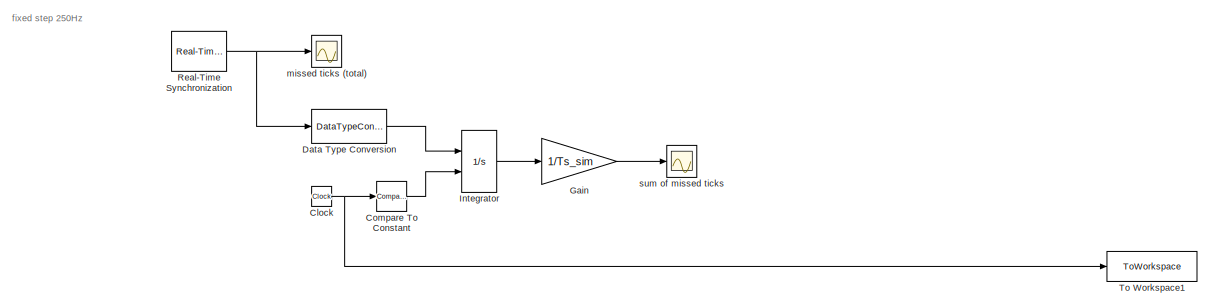
[diagram: root canvas - part 1/4, full width, top band]
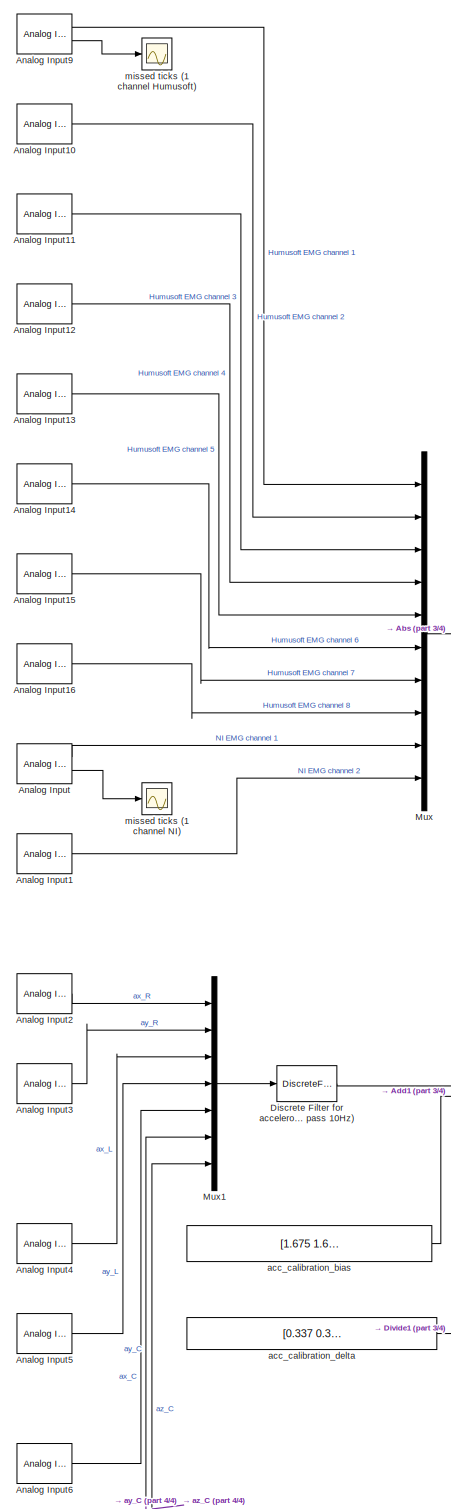
[diagram: root canvas - part 2/4, left side, full height]
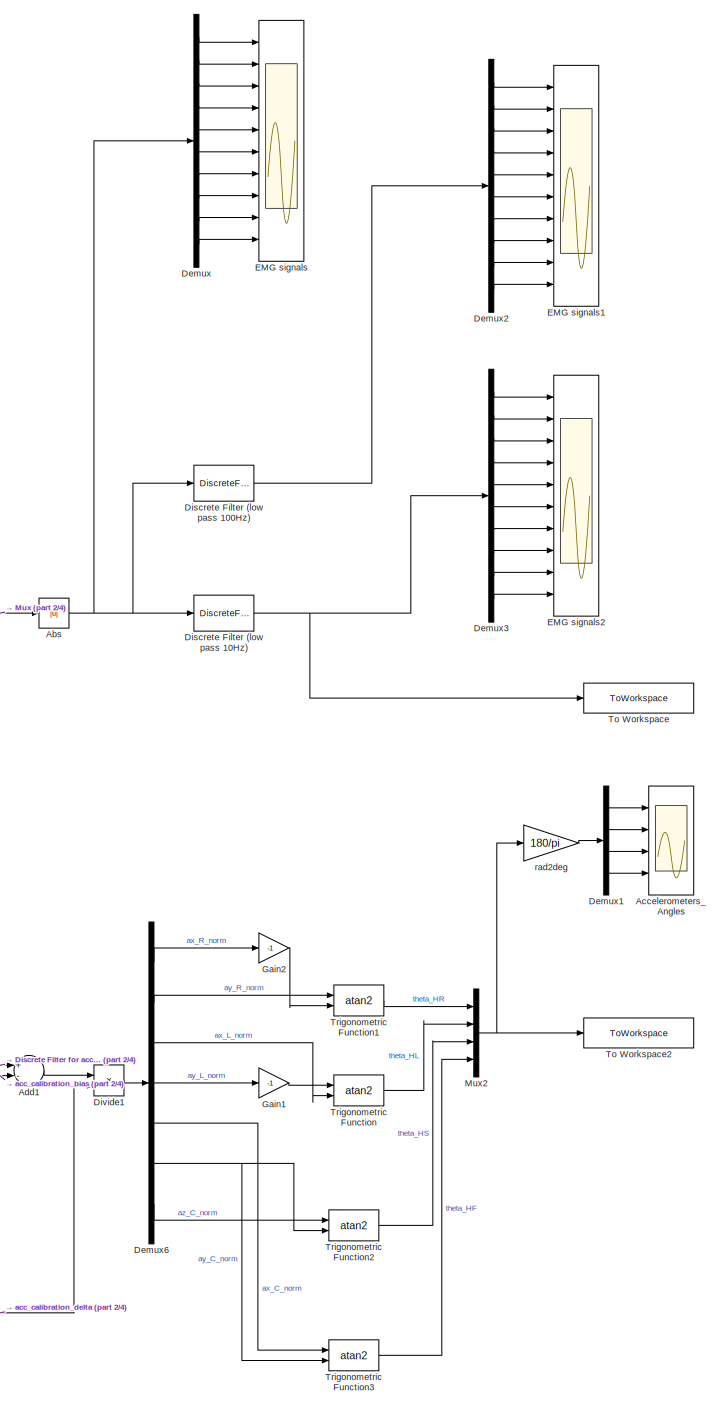
[diagram: root canvas - part 3/4, middle right region]
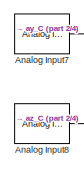
[diagram: root canvas - part 4/4, bottom left region]
MODEL slx_f25fc57dd0ad
KIND model
CONFIG AbsTol = auto
CONFIG FixedStep = Ts_sim
CONFIG MaxStep = auto
CONFIG MinStep = auto
CONFIG RelTol = 1e-3
CONFIG SampleTimeConstraint = Unconstrained
CONFIG Solver = ode5
CONFIG SolverMode = Auto
CONFIG SolverName = ode5
CONFIG StartTime = 0.0
CONFIG StopTime = 20
BLOCK [Abs] Abs
  SaturateOnIntegerOverflow = off
BLOCK [Scope] Accelerometers_Angles
  Floating = off
  LimitDataPoints = off
  NumInputPorts = 4
  Ports = [4]
  SaveName = ScopeData7
  YMax = 200~100~200~200
  YMin = -200~-70~-200~-200
BLOCK [Sum] Add1
  InputSameDT = off
  Inputs = +-
  OutDataTypeStr = Inherit: Inherit via internal rule
  Ports = [2, 1]
  SaturateOnIntegerOverflow = off
BLOCK [Reference] Analog Input  REF=sldrtlib/Analog Input
  AttributesFormatString = National Instruments\nPCI-6036E [auto]
  Channels = 1
  DataType = 1
  DrvAddress = 4294967295
  DrvName = National_Instruments/PCI-6036E
  DrvOptions = [0 0 0 0 0 0]
  MaxMissedTicks = 1000
  Ports = [0, 2]
  RangeMode = 1
  SampleTime = Ts_sim
  ShowMissedTicks = on
  SourceBlock = sldrtlib/Analog Input
  SourceType = Simulink Desktop Real-Time Analog Input
  VoltRange = 1
  YieldWhenWaiting = off
BLOCK [Reference] Analog Input1  REF=sldrtlib/Analog Input
  AttributesFormatString = National Instruments\nPCI-6036E [auto]
  Channels = 2
  DataType = 1
  DrvAddress = 4294967295
  DrvName = National_Instruments/PCI-6036E
  DrvOptions = [0 0 0 0 0 0]
  MaxMissedTicks = 1000
  Ports = [0, 1]
  RangeMode = 1
  SampleTime = Ts_sim
  ShowMissedTicks = off
  SourceBlock = sldrtlib/Analog Input
  SourceType = Simulink Desktop Real-Time Analog Input
  VoltRange = 1
  YieldWhenWaiting = off
BLOCK [Reference] Analog Input10  REF=sldrtlib/Analog Input
  AttributesFormatString = Humusoft\nAD622 [auto]
  Channels = 2
  DataType = 1
  DrvAddress = 4294967295
  DrvName = Humusoft/AD622
  DrvOptions = zeros(1,0)
  MaxMissedTicks = 1000
  Ports = [0, 1]
  RangeMode = 1
  SampleTime = Ts_sim
  ShowMissedTicks = off
  SourceBlock = sldrtlib/Analog Input
  SourceType = Simulink Desktop Real-Time Analog Input
  VoltRange = 1
  YieldWhenWaiting = off
BLOCK [Reference] Analog Input11  REF=sldrtlib/Analog Input
  AttributesFormatString = Humusoft\nAD622 [auto]
  Channels = 3
  DataType = 1
  DrvAddress = 4294967295
  DrvName = Humusoft/AD622
  DrvOptions = zeros(1,0)
  MaxMissedTicks = 1000
  Ports = [0, 1]
  RangeMode = 1
  SampleTime = Ts_sim
  ShowMissedTicks = off
  SourceBlock = sldrtlib/Analog Input
  SourceType = Simulink Desktop Real-Time Analog Input
  VoltRange = 1
  YieldWhenWaiting = off
BLOCK [Reference] Analog Input12  REF=sldrtlib/Analog Input
  AttributesFormatString = Humusoft\nAD622 [auto]
  Channels = 4
  DataType = 1
  DrvAddress = 4294967295
  DrvName = Humusoft/AD622
  DrvOptions = zeros(1,0)
  MaxMissedTicks = 1000
  Ports = [0, 1]
  RangeMode = 1
  SampleTime = Ts_sim
  ShowMissedTicks = off
  SourceBlock = sldrtlib/Analog Input
  SourceType = Simulink Desktop Real-Time Analog Input
  VoltRange = 1
  YieldWhenWaiting = off
BLOCK [Reference] Analog Input13  REF=sldrtlib/Analog Input
  AttributesFormatString = Humusoft\nAD622 [auto]
  Channels = 5
  DataType = 1
  DrvAddress = 4294967295
  DrvName = Humusoft/AD622
  DrvOptions = zeros(1,0)
  MaxMissedTicks = 1000
  Ports = [0, 1]
  RangeMode = 1
  SampleTime = Ts_sim
  ShowMissedTicks = off
  SourceBlock = sldrtlib/Analog Input
  SourceType = Simulink Desktop Real-Time Analog Input
  VoltRange = 1
  YieldWhenWaiting = off
BLOCK [Reference] Analog Input14  REF=sldrtlib/Analog Input
  AttributesFormatString = Humusoft\nAD622 [auto]
  Channels = 6
  DataType = 1
  DrvAddress = 4294967295
  DrvName = Humusoft/AD622
  DrvOptions = zeros(1,0)
  MaxMissedTicks = 1000
  Ports = [0, 1]
  RangeMode = 1
  SampleTime = Ts_sim
  ShowMissedTicks = off
  SourceBlock = sldrtlib/Analog Input
  SourceType = Simulink Desktop Real-Time Analog Input
  VoltRange = 1
  YieldWhenWaiting = off
BLOCK [Reference] Analog Input15  REF=sldrtlib/Analog Input
  AttributesFormatString = Humusoft\nAD622 [auto]
  Channels = 7
  DataType = 1
  DrvAddress = 4294967295
  DrvName = Humusoft/AD622
  DrvOptions = zeros(1,0)
  MaxMissedTicks = 1000
  Ports = [0, 1]
  RangeMode = 1
  SampleTime = Ts_sim
  ShowMissedTicks = off
  SourceBlock = sldrtlib/Analog Input
  SourceType = Simulink Desktop Real-Time Analog Input
  VoltRange = 1
  YieldWhenWaiting = off
BLOCK [Reference] Analog Input16  REF=sldrtlib/Analog Input
  AttributesFormatString = Humusoft\nAD622 [auto]
  Channels = 8
  DataType = 1
  DrvAddress = 4294967295
  DrvName = Humusoft/AD622
  DrvOptions = zeros(1,0)
  MaxMissedTicks = 1000
  Ports = [0, 1]
  RangeMode = 1
  SampleTime = Ts_sim
  ShowMissedTicks = off
  SourceBlock = sldrtlib/Analog Input
  SourceType = Simulink Desktop Real-Time Analog Input
  VoltRange = 1
  YieldWhenWaiting = off
BLOCK [Reference] Analog Input2  REF=sldrtlib/Analog Input
  AttributesFormatString = National Instruments\nPCI-6036E [auto]
  Channels = 3
  DataType = 1
  DrvAddress = 4294967295
  DrvName = National_Instruments/PCI-6036E
  DrvOptions = [0 0 0 0 0 0]
  MaxMissedTicks = 1000
  Ports = [0, 1]
  RangeMode = 1
  SampleTime = Ts_acc
  ShowMissedTicks = off
  SourceBlock = sldrtlib/Analog Input
  SourceType = Simulink Desktop Real-Time Analog Input
  VoltRange = 1
  YieldWhenWaiting = off
BLOCK [Reference] Analog Input3  REF=sldrtlib/Analog Input
  AttributesFormatString = National Instruments\nPCI-6036E [auto]
  Channels = 4
  DataType = 1
  DrvAddress = 4294967295
  DrvName = National_Instruments/PCI-6036E
  DrvOptions = [0 0 0 0 0 0]
  MaxMissedTicks = 1000
  Ports = [0, 1]
  RangeMode = 1
  SampleTime = Ts_acc
  ShowMissedTicks = off
  SourceBlock = sldrtlib/Analog Input
  SourceType = Simulink Desktop Real-Time Analog Input
  VoltRange = 1
  YieldWhenWaiting = off
BLOCK [Reference] Analog Input4  REF=sldrtlib/Analog Input
  AttributesFormatString = National Instruments\nPCI-6036E [auto]
  Channels = 5
  DataType = 1
  DrvAddress = 4294967295
  DrvName = National_Instruments/PCI-6036E
  DrvOptions = [0 0 0 0 0 0]
  MaxMissedTicks = 1000
  Ports = [0, 1]
  RangeMode = 1
  SampleTime = Ts_acc
  ShowMissedTicks = off
  SourceBlock = sldrtlib/Analog Input
  SourceType = Simulink Desktop Real-Time Analog Input
  VoltRange = 1
  YieldWhenWaiting = off
BLOCK [Reference] Analog Input5  REF=sldrtlib/Analog Input
  AttributesFormatString = National Instruments\nPCI-6036E [auto]
  Channels = 6
  DataType = 1
  DrvAddress = 4294967295
  DrvName = National_Instruments/PCI-6036E
  DrvOptions = [0 0 0 0 0 0]
  MaxMissedTicks = 1000
  Ports = [0, 1]
  RangeMode = 1
  SampleTime = Ts_acc
  ShowMissedTicks = off
  SourceBlock = sldrtlib/Analog Input
  SourceType = Simulink Desktop Real-Time Analog Input
  VoltRange = 1
  YieldWhenWaiting = off
BLOCK [Reference] Analog Input6  REF=sldrtlib/Analog Input
  AttributesFormatString = National Instruments\nPCI-6036E [auto]
  Channels = 7
  DataType = 1
  DrvAddress = 4294967295
  DrvName = National_Instruments/PCI-6036E
  DrvOptions = [0 0 0 0 0 0]
  MaxMissedTicks = 1000
  Ports = [0, 1]
  RangeMode = 1
  SampleTime = Ts_acc
  ShowMissedTicks = off
  SourceBlock = sldrtlib/Analog Input
  SourceType = Simulink Desktop Real-Time Analog Input
  VoltRange = 1
  YieldWhenWaiting = off
BLOCK [Reference] Analog Input7  REF=sldrtlib/Analog Input
  AttributesFormatString = National Instruments\nPCI-6036E [auto]
  Channels = 8
  DataType = 1
  DrvAddress = 4294967295
  DrvName = National_Instruments/PCI-6036E
  DrvOptions = [0 0 0 0 0 0]
  MaxMissedTicks = 1000
  Ports = [0, 1]
  RangeMode = 1
  SampleTime = Ts_acc
  ShowMissedTicks = off
  SourceBlock = sldrtlib/Analog Input
  SourceType = Simulink Desktop Real-Time Analog Input
  VoltRange = 1
  YieldWhenWaiting = off
BLOCK [Reference] Analog Input8  REF=sldrtlib/Analog Input
  AttributesFormatString = National Instruments\nPCI-6036E [auto]
  Channels = 16
  DataType = 1
  DrvAddress = 4294967295
  DrvName = National_Instruments/PCI-6036E
  DrvOptions = [0 0 0 0 0 0]
  MaxMissedTicks = 1000
  Ports = [0, 1]
  RangeMode = 1
  SampleTime = Ts_acc
  ShowMissedTicks = off
  SourceBlock = sldrtlib/Analog Input
  SourceType = Simulink Desktop Real-Time Analog Input
  VoltRange = 1
  YieldWhenWaiting = off
BLOCK [Reference] Analog Input9  REF=sldrtlib/Analog Input
  AttributesFormatString = Humusoft\nAD622 [auto]
  Channels = 1
  DataType = 1
  DrvAddress = 4294967295
  DrvName = Humusoft/AD622
  DrvOptions = zeros(1,0)
  MaxMissedTicks = 1000
  Ports = [0, 2]
  RangeMode = 1
  SampleTime = Ts_sim
  ShowMissedTicks = on
  SourceBlock = sldrtlib/Analog Input
  SourceType = Simulink Desktop Real-Time Analog Input
  VoltRange = 1
  YieldWhenWaiting = off
BLOCK [Clock] Clock
BLOCK [Reference] Compare To Constant  REF=simulink/Logic and Bit
Operations/Compare
To Constant
  OutDataTypeStr = boolean
  Ports = [1, 1]
  SourceBlock = simulink/Logic and Bit\nOperations/Compare\nTo Constant
  SourceType = Compare To Constant
  ZeroCross = on
  const = 1
  relop = >
BLOCK [DataTypeConversion] Data Type Conversion
  OutDataTypeStr = double
  RndMeth = Floor
  SaturateOnIntegerOverflow = off
BLOCK [Demux] Demux
  DisplayOption = bar
  Outputs = 10
  Ports = [1, 10]
BLOCK [Demux] Demux1
  DisplayOption = bar
  Ports = [1, 4]
BLOCK [Demux] Demux2
  DisplayOption = bar
  Outputs = 10
  Ports = [1, 10]
BLOCK [Demux] Demux3
  DisplayOption = bar
  Outputs = 10
  Ports = [1, 10]
BLOCK [Demux] Demux6
  DisplayOption = bar
  Outputs = 7
  Ports = [1, 7]
BLOCK [DiscreteFilter] Discrete Filter (low pass 100Hz)
  Denominator = A_butter_low
  InputPortMap = u0
  Numerator = B_butter_low
  Ports = [1, 1]
BLOCK [DiscreteFilter] Discrete Filter (low pass 10Hz)
  Denominator = A_butter_cal
  InputPortMap = u0
  Numerator = B_butter_cal
  Ports = [1, 1]
BLOCK [DiscreteFilter] Discrete Filter for accelerometers (low pass 10Hz)
  Denominator = A_butter_acc
  InputPortMap = u0
  Numerator = B_butter_acc
  Ports = [1, 1]
BLOCK [Product] Divide1
  InputSameDT = off
  Inputs = */
  OutDataTypeStr = Inherit: Inherit via internal rule
  Ports = [2, 1]
  RndMeth = Floor
  SaturateOnIntegerOverflow = off
BLOCK [Scope] EMG signals
  Floating = off
  LimitDataPoints = off
  NumInputPorts = 10
  Ports = [10]
  SaveName = ScopeData2
  TimeRange = 11
  YMax = 0.75~0.4~0.3~0.15~2~2.5~0.5~0.75~0.55~0.5
  YMin = 0~0~0~0~0~0~0~0~2.77556e-17~0
BLOCK [Scope] EMG signals1
  Floating = off
  LimitDataPoints = off
  NumInputPorts = 10
  Ports = [10]
  SaveName = ScopeData8
  TimeRange = 11
  YMax = 0.25~0.175~0.175~0.25~0.4~0.6~0.9~0.6~0.55~0.3
  YMin = -0.05~-0.05~-0.05~-0.05~-0.1~-0.1~-0.2~-0.1~0.25~-0.05
BLOCK [Scope] EMG signals2
  Floating = off
  LimitDataPoints = off
  NumInputPorts = 10
  Ports = [10]
  SaveName = ScopeData6
  TimeRange = 11
  YMax = 0.06~0.07~0.09~0.04~0.07~0.1~0.04~0.05~0.33~0.0225
  YMin = -0.01~-3.46945e-18~-3.46945e-18~-0.005~-3.46945e-18~-0.01~-0.005~0~0.29~0.0075
BLOCK [Gain] Gain
  Gain = 1/Ts_sim
  OutDataTypeStr = Inherit: Inherit via internal rule
  ParamDataTypeStr = Inherit: Inherit via internal rule
  SaturateOnIntegerOverflow = off
BLOCK [Gain] Gain1
  Gain = -1
  OutDataTypeStr = Inherit: Inherit via internal rule
  ParamDataTypeStr = Inherit: Inherit via internal rule
  SaturateOnIntegerOverflow = off
BLOCK [Gain] Gain2
  Gain = -1
  OutDataTypeStr = Inherit: Inherit via internal rule
  ParamDataTypeStr = Inherit: Inherit via internal rule
  SaturateOnIntegerOverflow = off
BLOCK [Integrator] Integrator
  ExternalReset = rising
  Ports = [2, 1]
BLOCK [Mux] Mux
  DisplayOption = bar
  Inputs = 10
  Ports = [10, 1]
BLOCK [Mux] Mux1
  DisplayOption = bar
  Inputs = 7
  Ports = [7, 1]
BLOCK [Mux] Mux2
  DisplayOption = bar
  Ports = [4, 1]
BLOCK [Reference] Real-Time Synchronization  REF=sldrtlib/Real-Time
Synchronization
  MaxMissedTicks = 1000
  Ports = [0, 1]
  SampleTime = Ts_sim
  ShowMissedTicks = on
  SourceBlock = sldrtlib/Real-Time\nSynchronization
  SourceType = Simulink Desktop Real-Time Synchronization
  YieldWhenWaiting = off
BLOCK [ToWorkspace] To Workspace
  FixptAsFi = on
  MaxDataPoints = inf
  Ports = [1]
  SampleTime = -1
  Save2DSignal = 3-D array (concatenate along third dimension)
  VariableName = EMG_vect_calRT
BLOCK [ToWorkspace] To Workspace1
  FixptAsFi = on
  MaxDataPoints = inf
  Ports = [1]
  SampleTime = -1
  Save2DSignal = 3-D array (concatenate along third dimension)
  VariableName = time_calRT
BLOCK [ToWorkspace] To Workspace2
  FixptAsFi = on
  MaxDataPoints = inf
  Ports = [1]
  SampleTime = -1
  Save2DSignal = 3-D array (concatenate along third dimension)
  SaveFormat = Structure With Time
  VariableName = accel_data_calRT
BLOCK [Trigonometry] Trigonometric Function
  Operator = atan2
  Ports = [2, 1]
BLOCK [Trigonometry] Trigonometric Function1
  Operator = atan2
  Ports = [2, 1]
BLOCK [Trigonometry] Trigonometric Function2
  Operator = atan2
  Ports = [2, 1]
BLOCK [Trigonometry] Trigonometric Function3
  Operator = atan2
  Ports = [2, 1]
BLOCK [Constant] acc_calibration_bias
  Value = [1.675  1.663  1.675  1.659  1.663  1.657  1.665]
BLOCK [Constant] acc_calibration_delta
  Value = [0.337  0.330  0.333  0.319  0.336  0.332  0.288]
BLOCK [Scope] missed ticks (1 channel Humusoft)
  Floating = off
  LimitDataPoints = off
  NumInputPorts = 1
  Ports = [1]
  SaveName = ScopeData4
BLOCK [Scope] missed ticks (1 channel NI)
  Floating = off
  LimitDataPoints = off
  NumInputPorts = 1
  Ports = [1]
  SaveName = ScopeData1
BLOCK [Scope] missed ticks (total)
  Floating = off
  LimitDataPoints = off
  NumInputPorts = 1
  Ports = [1]
BLOCK [Gain] rad2deg
  Gain = 180/pi
  OutDataTypeStr = Inherit: Inherit via internal rule
  ParamDataTypeStr = Inherit: Inherit via internal rule
  SaturateOnIntegerOverflow = off
BLOCK [Scope] sum of missed ticks
  Floating = off
  LimitDataPoints = off
  NumInputPorts = 1
  Ports = [1]
  SaveName = ScopeData3
ANNOTATION (root): fixed step 250Hz
NET Abs:1 -> Demux:1, Discrete Filter (low pass 100Hz):1, Discrete Filter (low pass 10Hz):1
LINE Add1:1 -> Divide1:1
LINE Analog Input10:1 -> Mux:2
LINE Analog Input11:1 -> Mux:3
LINE Analog Input12:1 -> Mux:4
LINE Analog Input13:1 -> Mux:5
LINE Analog Input14:1 -> Mux:6
LINE Analog Input15:1 -> Mux:7
LINE Analog Input16:1 -> Mux:8
LINE Analog Input1:1 -> Mux:10
LINE Analog Input2:1 -> Mux1:1
LINE Analog Input3:1 -> Mux1:2
LINE Analog Input4:1 -> Mux1:3
LINE Analog Input5:1 -> Mux1:4
LINE Analog Input6:1 -> Mux1:5
LINE Analog Input7:1 -> Mux1:6
LINE Analog Input8:1 -> Mux1:7
LINE Analog Input9:1 -> Mux:1
LINE Analog Input9:2 -> missed ticks (1 channel Humusoft):1
LINE Analog Input:1 -> Mux:9
LINE Analog Input:2 -> missed ticks (1 channel NI):1
NET Clock:1 -> Compare To Constant:1, To Workspace1:1
LINE Compare To Constant:1 -> Integrator:2
LINE Data Type Conversion:1 -> Integrator:1
LINE Demux1:1 -> Accelerometers_Angles:1
LINE Demux1:2 -> Accelerometers_Angles:2
LINE Demux1:3 -> Accelerometers_Angles:3
LINE Demux1:4 -> Accelerometers_Angles:4
LINE Demux2:1 -> EMG signals1:1
LINE Demux2:10 -> EMG signals1:10
LINE Demux2:2 -> EMG signals1:2
LINE Demux2:3 -> EMG signals1:3
LINE Demux2:4 -> EMG signals1:4
LINE Demux2:5 -> EMG signals1:5
LINE Demux2:6 -> EMG signals1:6
LINE Demux2:7 -> EMG signals1:7
LINE Demux2:8 -> EMG signals1:8
LINE Demux2:9 -> EMG signals1:9
LINE Demux3:1 -> EMG signals2:1
LINE Demux3:10 -> EMG signals2:10
LINE Demux3:2 -> EMG signals2:2
LINE Demux3:3 -> EMG signals2:3
LINE Demux3:4 -> EMG signals2:4
LINE Demux3:5 -> EMG signals2:5
LINE Demux3:6 -> EMG signals2:6
LINE Demux3:7 -> EMG signals2:7
LINE Demux3:8 -> EMG signals2:8
LINE Demux3:9 -> EMG signals2:9
LINE Demux6:1 -> Gain2:1
LINE Demux6:2 -> Trigonometric Function1:1
LINE Demux6:3 -> Trigonometric Function:2
LINE Demux6:4 -> Gain1:1
LINE Demux6:5 -> Trigonometric Function3:1
NET Demux6:6 -> Trigonometric Function2:2, Trigonometric Function3:2
LINE Demux6:7 -> Trigonometric Function2:1
LINE Demux:1 -> EMG signals:1
LINE Demux:10 -> EMG signals:10
LINE Demux:2 -> EMG signals:2
LINE Demux:3 -> EMG signals:3
LINE Demux:4 -> EMG signals:4
LINE Demux:5 -> EMG signals:5
LINE Demux:6 -> EMG signals:6
LINE Demux:7 -> EMG signals:7
LINE Demux:8 -> EMG signals:8
LINE Demux:9 -> EMG signals:9
LINE Discrete Filter (low pass 100Hz):1 -> Demux2:1
NET Discrete Filter (low pass 10Hz):1 -> Demux3:1, To Workspace:1
LINE Discrete Filter for accelerometers (low pass 10Hz):1 -> Add1:1
LINE Divide1:1 -> Demux6:1
LINE Gain1:1 -> Trigonometric Function:1
LINE Gain2:1 -> Trigonometric Function1:2
LINE Gain:1 -> sum of missed ticks:1
LINE Integrator:1 -> Gain:1
LINE Mux1:1 -> Discrete Filter for accelerometers (low pass 10Hz):1
NET Mux2:1 -> To Workspace2:1, rad2deg:1
LINE Mux:1 -> Abs:1
NET Real-Time Synchronization:1 -> Data Type Conversion:1, missed ticks (total):1
LINE Trigonometric Function1:1 -> Mux2:1
LINE Trigonometric Function2:1 -> Mux2:3
LINE Trigonometric Function3:1 -> Mux2:4
LINE Trigonometric Function:1 -> Mux2:2
LINE acc_calibration_bias:1 -> Add1:2
LINE acc_calibration_delta:1 -> Divide1:2
LINE rad2deg:1 -> Demux1:1
note: NET lines group one-source signal fan-out (src -> all destinations, sorted); 1:1 wires keep LINE
